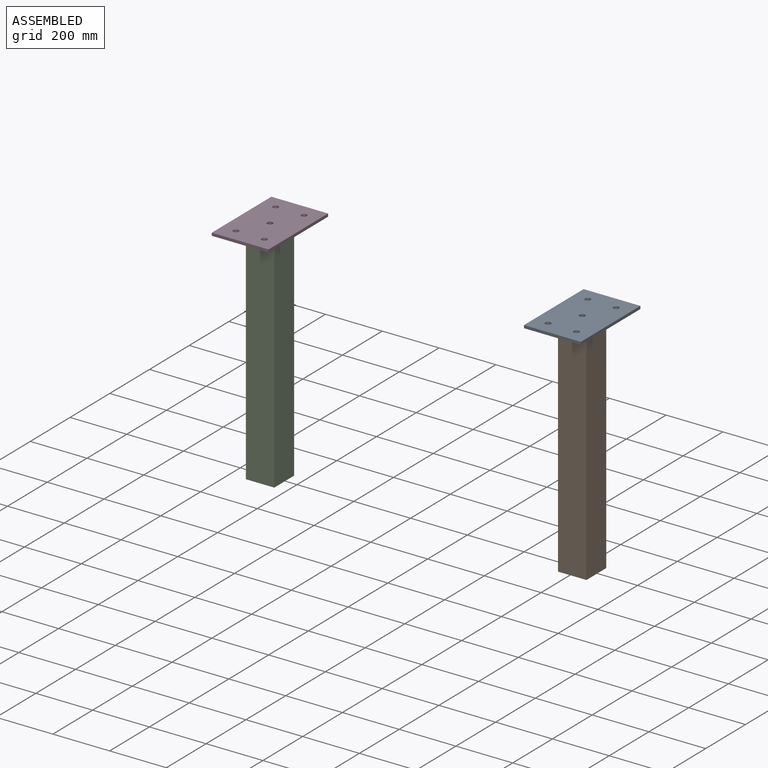
[diagram: assembled view]
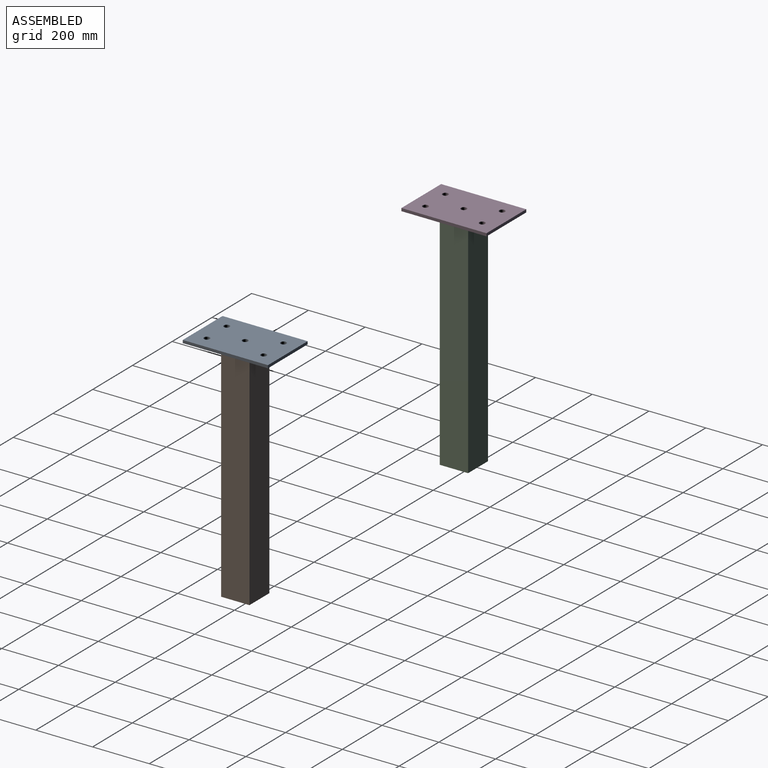
[diagram: assembled view, second angle]
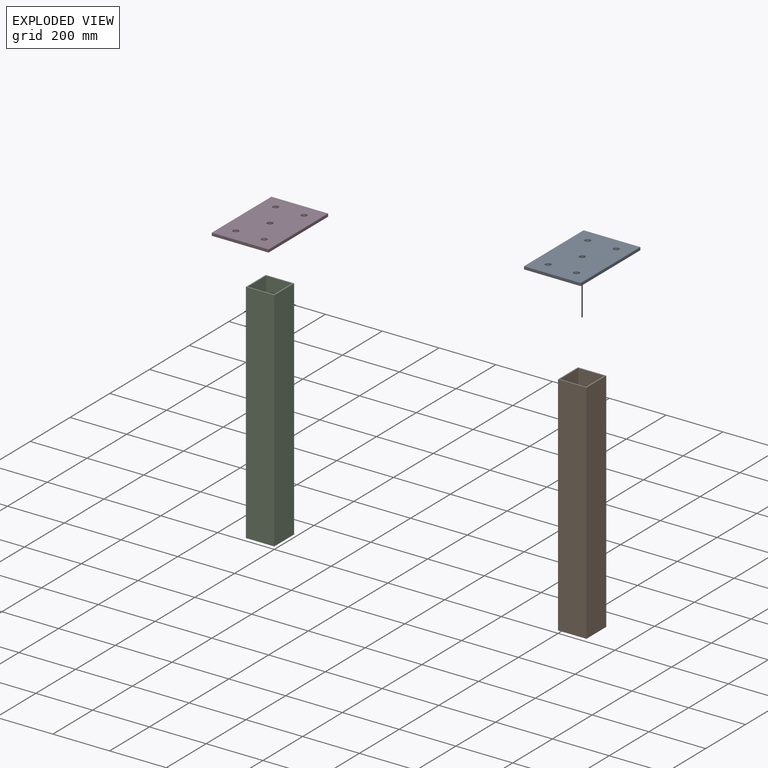
[diagram: exploded view]
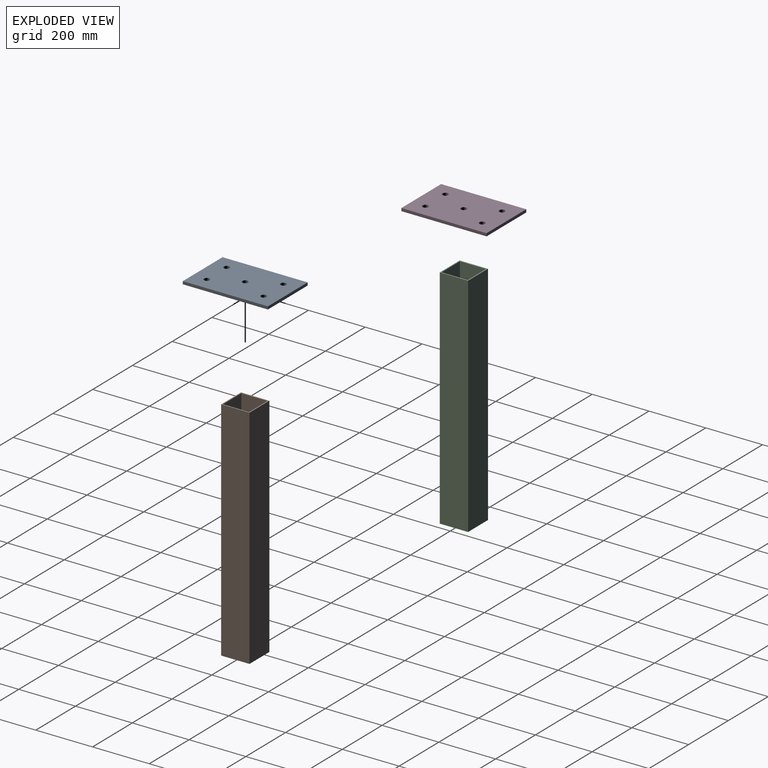
[diagram: exploded view, second angle]
ASSEMBLY  parts=4 mates=2
PART A: 21 faces, bbox 200x300x10 mm
  f0: plane 92x92mm, normal (0,0,1), area 8149.8mm2, adj f9,f15,f16,f17,f18
  f1: plane 300x200mm, normal (0,0,1), area 48743.4mm2, adj f2,f3,f4,f5,f6,f7,f8,f10
  f2: plane 200x10mm, normal (0,1,0), area 2000mm2, adj f1,f3,f10,f11
  f3: plane 300x10mm, normal (-1,0,0), area 3000mm2, adj f1,f2,f4,f11
  f4: plane 200x10mm, normal (0,-1,0), area 2000mm2, adj f1,f3,f10,f11
  f5: cylinder r=10mm len=20mm, axis (0,0,-1), area 628.3mm2, adj f1,f11
  f6: cylinder r=10mm len=20mm, axis (0,0,-1), area 628.3mm2, adj f1,f11
  f7: cylinder r=10mm len=20mm, axis (0,0,-1), area 628.3mm2, adj f1,f11
  f8: cylinder r=10mm len=20mm, axis (0,0,-1), area 628.3mm2, adj f1,f11
  f9: cylinder r=10mm len=20mm, axis (0,0,-1), area 628.3mm2, adj f0,f11
  f10: plane 300x10mm, normal (1,0,0), area 3000mm2, adj f1,f2,f4,f11
  f11: plane 300x200mm, normal (0,0,-1), area 58429.2mm2, adj f2,f3,f4,f5,f6,f7,f8,f9
  f12: plane 100x0.01mm, normal (0,1,0), area 1mm2, adj f1,f13,f19,f20
  f13: plane 100x0.01mm, normal (-1,0,0), area 1mm2, adj f1,f12,f14,f20
  f14: plane 100x0.01mm, normal (0,-1,0), area 1mm2, adj f1,f13,f19,f20
  f15: plane 92x0.01mm, normal (1,0,0), area 0.9mm2, adj f0,f16,f18,f20
  f16: plane 92x0.01mm, normal (0,-1,0), area 0.9mm2, adj f0,f15,f17,f20
  f17: plane 92x0.01mm, normal (-1,0,0), area 0.9mm2, adj f0,f16,f18,f20
  f18: plane 92x0.01mm, normal (0,1,0), area 0.9mm2, adj f0,f15,f17,f20
  f19: plane 100x0.01mm, normal (1,0,0), area 1mm2, adj f1,f12,f14,f20
  f20: plane 100x100mm, normal (0,0,1), area 1536mm2, adj f12,f13,f14,f15,f16,f17,f18,f19
PART B: 10 faces, bbox 100x100x800 mm
  f0: plane 800x100mm, normal (0,1,0), area 80000mm2, adj f1,f7,f8,f9
  f1: plane 800x100mm, normal (-1,0,0), area 80000mm2, adj f0,f2,f8,f9
  f2: plane 800x100mm, normal (0,-1,0), area 80000mm2, adj f1,f7,f8,f9
  f3: plane 800x92mm, normal (1,0,0), area 73600mm2, adj f4,f6,f8,f9
  f4: plane 800x92mm, normal (0,-1,0), area 73600mm2, adj f3,f5,f8,f9
  f5: plane 800x92mm, normal (-1,0,0), area 73600mm2, adj f4,f6,f8,f9
  f6: plane 800x92mm, normal (0,1,0), area 73600mm2, adj f3,f5,f8,f9
  f7: plane 800x100mm, normal (1,0,0), area 80000mm2, adj f0,f2,f8,f9
  f8: plane 100x100mm, normal (0,0,1), area 1536mm2, adj f0,f1,f2,f3,f4,f5,f6,f7
  f9: plane 100x100mm, normal (0,0,-1), area 1536mm2, adj f0,f1,f2,f3,f4,f5,f6,f7
PART C: same geometry as B
PART D: same geometry as A
PLACE A rot(axis=(0,-1,0),180deg) t=(4167.28,-24.96,-1581.82)mm
PLACE B rot(axis=(0,-1,0),180deg) t=(4117.28,-166.79,-1591.83)mm
PLACE C rot(axis=(0,-1,0),180deg) t=(3017.28,-166.79,-1591.83)mm
PLACE D rot(axis=(0,-1,0),180deg) t=(3067.28,-24.96,-1581.82)mm
MATE fastened B.f9 <-> A.f20  axis (0,0,1) through (4017.28,-224.96,-1591.83)mm
MATE fastened C.f9 <-> D.f20  axis (0,0,1) through (2917.28,-224.96,-1591.83)mm
